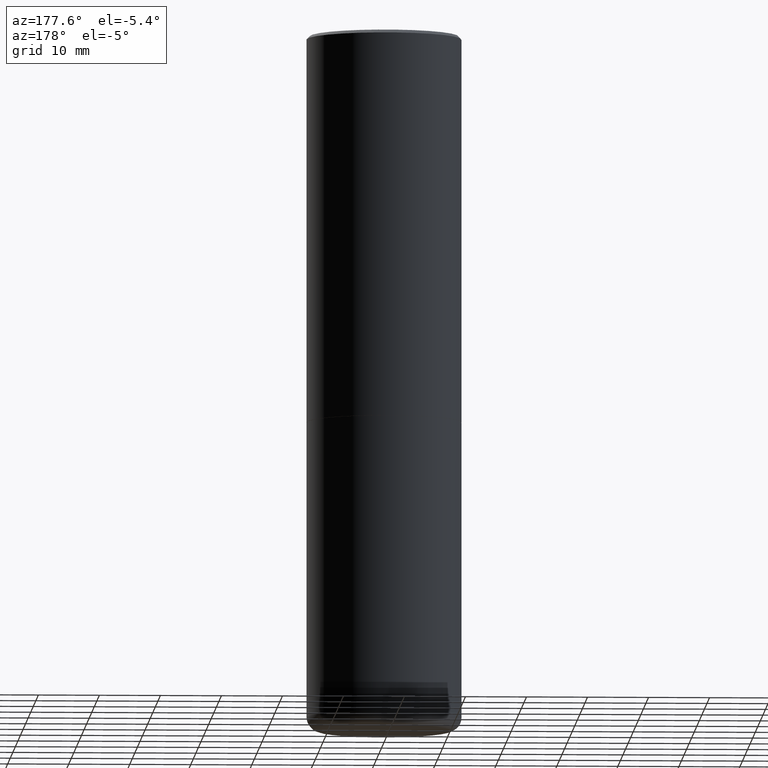
[diagram: clean part render]
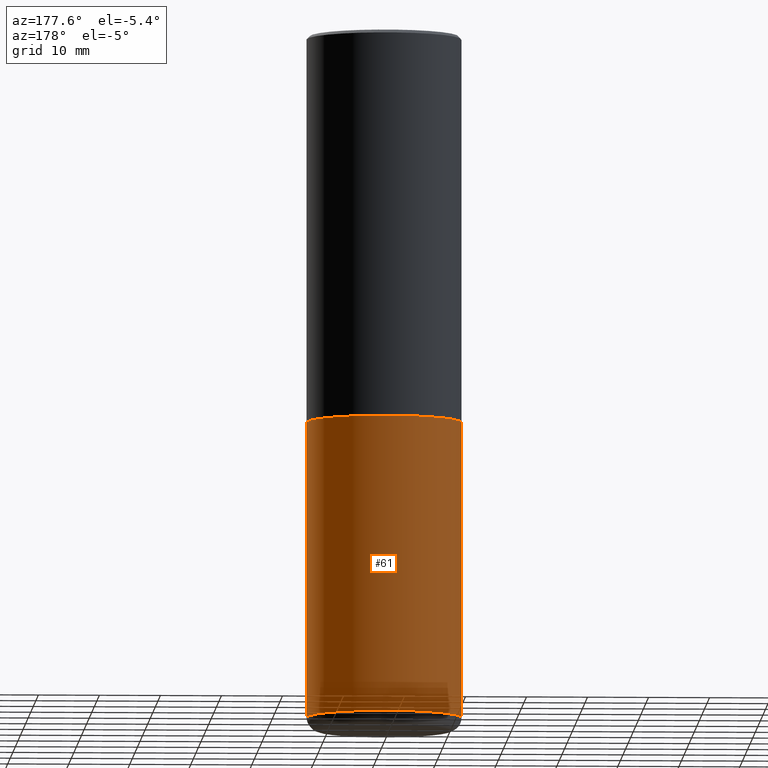
[diagram: same view with one face highlighted and labeled with its STEP entity id]
A machine part, auxiliary view. The second image highlights one B-rep face of the part: STEP entity #61.
In plain terms, the highlighted cylindrical surface (partial cylindrical patch) has radius 12.7 mm, axis along (-0, 0, 1).
Its self-contained STEP definition (entity closure, byte-faithful):
#7 = AXIS2_PLACEMENT_3D ( 'NONE', #42, #252, #246 ) ;
#10 = CARTESIAN_POINT ( 'NONE',  ( 0.5000000000000000000, -1.888891404314140383E-14, -4.410000000000000142 ) ) ;
#32 = VERTEX_POINT ( 'NONE', #415 ) ;
#33 = DIRECTION ( 'NONE',  ( -2.445468806185136597E-29, 3.491481338843145583E-15, 1.000000000000000000 ) ) ;
#34 = ORIENTED_EDGE ( 'NONE', *, *, #187, .T. ) ;
#42 = CARTESIAN_POINT ( 'NONE',  ( 6.113672015462842613E-29, -8.728703347107864943E-15, -2.500000000000000000 ) ) ;
#52 = AXIS2_PLACEMENT_3D ( 'NONE', #409, #287, #417 ) ;
#61 = ADVANCED_FACE ( 'NONE', ( #226 ), #190, .T. ) ;
#62 = DIRECTION ( 'NONE',  ( -2.445468806185136877E-29, 3.491481338843145188E-15, 1.000000000000000000 ) ) ;
#69 = CARTESIAN_POINT ( 'NONE',  ( -0.5000000000000000000, 3.552713678800500929E-15, -2.459467545127452891E-29 ) ) ;
#79 = DIRECTION ( 'NONE',  ( 1.000000000000000000, -6.982962677686270655E-15, 0.000000000000000000 ) ) ;
#87 = EDGE_CURVE ( 'NONE', #162, #299, #385, .T. ) ;
#95 = DIRECTION ( 'NONE',  ( -2.445468806185136877E-29, 3.491481338843145188E-15, 1.000000000000000000 ) ) ;
#96 = ORIENTED_EDGE ( 'NONE', *, *, #259, .F. ) ;
#115 = ORIENTED_EDGE ( 'NONE', *, *, #236, .T. ) ;
#162 = VERTEX_POINT ( 'NONE', #10 ) ;
#187 = EDGE_CURVE ( 'NONE', #32, #366, #193, .T. ) ;
#190 = CYLINDRICAL_SURFACE ( 'NONE', #52, 0.5000000000000000000 ) ;
#193 = LINE ( 'NONE', #69, #334 ) ;
#196 = VECTOR ( 'NONE', #62, 39.37007874015748143 ) ;
#226 = FACE_OUTER_BOUND ( 'NONE', #285, .T. ) ;
#230 = CARTESIAN_POINT ( 'NONE',  ( 0.5000000000000000000, -3.491481338843133355E-15, 2.438088387897967896E-29 ) ) ;
#236 = EDGE_CURVE ( 'NONE', #162, #32, #289, .T. ) ;
#246 = DIRECTION ( 'NONE',  ( 1.000000000000000000, -6.982962677686269077E-15, 0.000000000000000000 ) ) ;
#252 = DIRECTION ( 'NONE',  ( -2.445468806185136597E-29, 3.491481338843145583E-15, 1.000000000000000000 ) ) ;
#259 = EDGE_CURVE ( 'NONE', #299, #366, #312, .T. ) ;
#285 = EDGE_LOOP ( 'NONE', ( #115, #34, #96, #291 ) ) ;
#287 = DIRECTION ( 'NONE',  ( -2.445468806185136597E-29, 3.491481338843145583E-15, 1.000000000000000000 ) ) ;
#289 = CIRCLE ( 'NONE', #294, 0.5000000000000000000 ) ;
#291 = ORIENTED_EDGE ( 'NONE', *, *, #87, .F. ) ;
#294 = AXIS2_PLACEMENT_3D ( 'NONE', #322, #33, #79 ) ;
#299 = VERTEX_POINT ( 'NONE', #307 ) ;
#307 = CARTESIAN_POINT ( 'NONE',  ( 0.5000000000000000000, -1.222018468595099830E-14, -2.500000000000000000 ) ) ;
#311 = CARTESIAN_POINT ( 'NONE',  ( -0.5000000000000000000, -8.510354346902568358E-15, -2.500000000000000000 ) ) ;
#312 = CIRCLE ( 'NONE', #7, 0.5000000000000000000 ) ;
#322 = CARTESIAN_POINT ( 'NONE',  ( 1.078451743527645302E-28, -1.539743270429827363E-14, -4.410000000000000142 ) ) ;
#334 = VECTOR ( 'NONE', #95, 39.37007874015748143 ) ;
#366 = VERTEX_POINT ( 'NONE', #311 ) ;
#385 = LINE ( 'NONE', #230, #196 ) ;
#409 = CARTESIAN_POINT ( 'NONE',  ( 0.000000000000000000, 0.000000000000000000, 0.000000000000000000 ) ) ;
#415 = CARTESIAN_POINT ( 'NONE',  ( -0.5000000000000000000, -1.184471902549777113E-14, -4.410000000000000142 ) ) ;
#417 = DIRECTION ( 'NONE',  ( 1.000000000000000000, -6.982962677686266711E-15, 4.876176775795935793E-29 ) ) ;